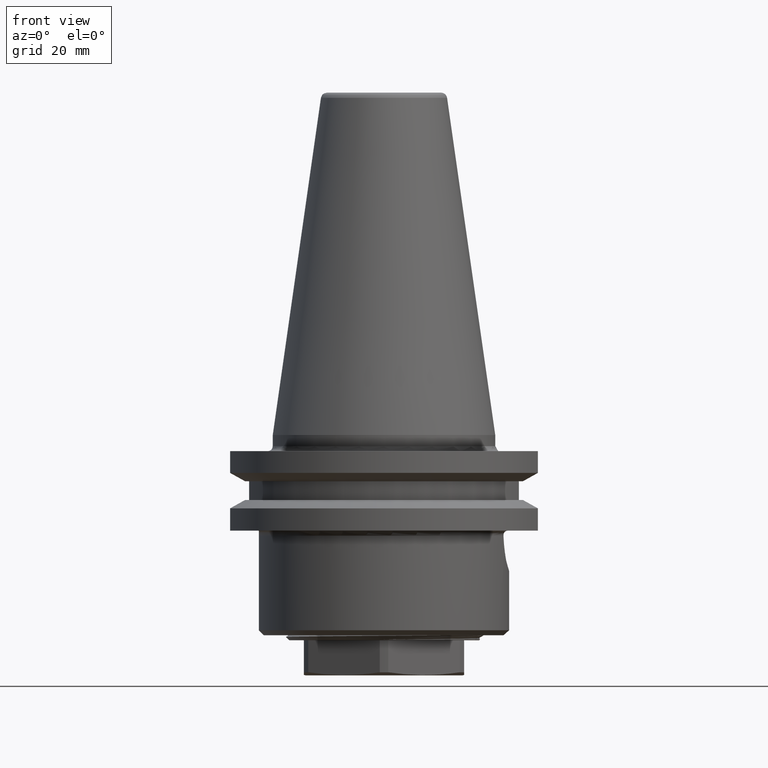
[diagram: clean part render]
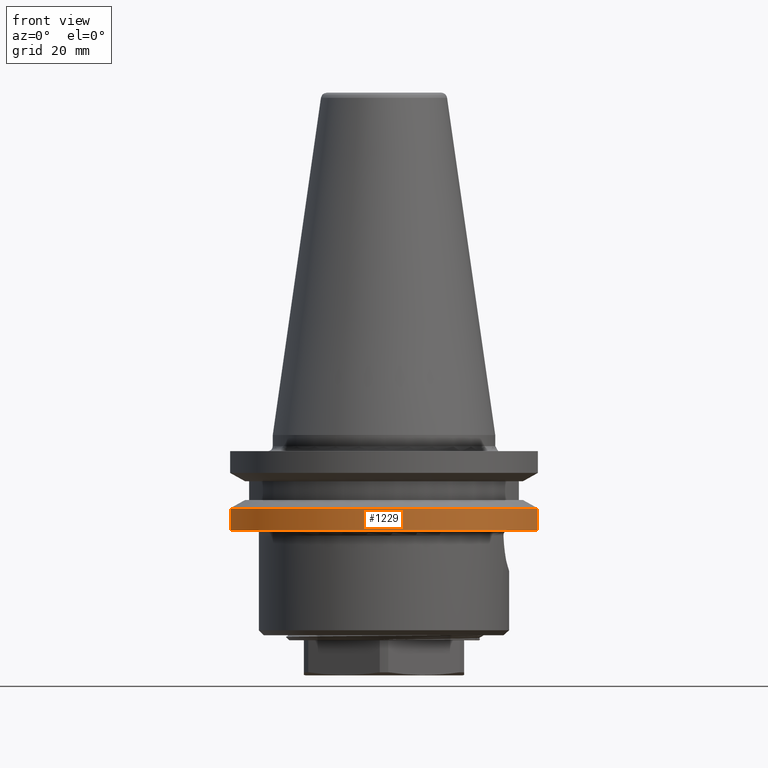
[diagram: same view with one face highlighted and labeled with its STEP entity id]
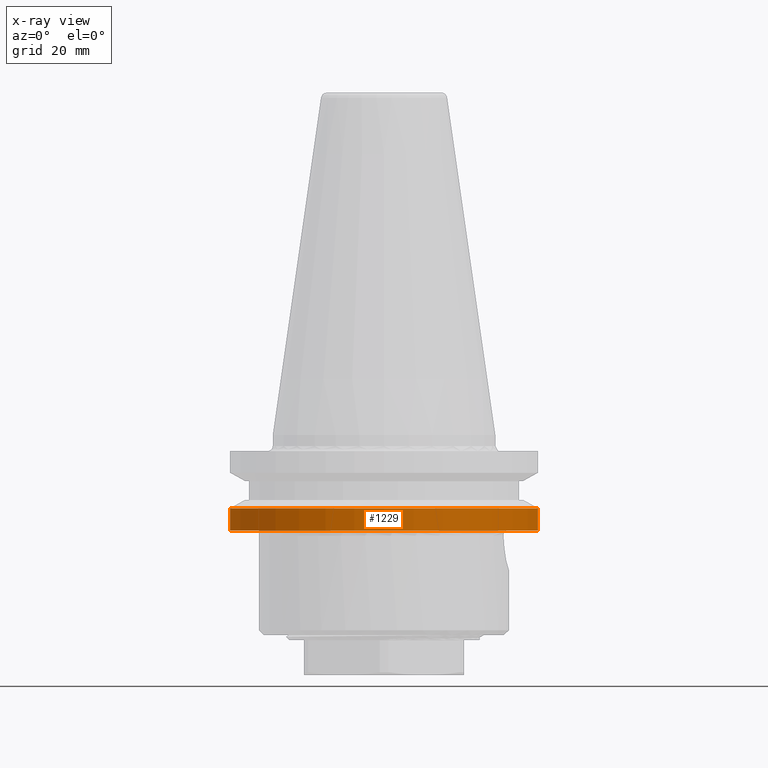
[diagram: x-ray of the same camera — body ghosted, the highlighted face saturated]
A machine part, front view. The second image highlights one B-rep face of the part: STEP entity #1229.
The next image is the same camera in x-ray: the body ghosted, the highlighted face saturated — about 0% of this face is hidden behind the body in this view.
In plain terms, the highlighted cylindrical surface (partial cylindrical patch) has radius 31.775 mm, axis along (0, 0, -1).
Its self-contained STEP definition (entity closure, byte-faithful):
#40=CYLINDRICAL_SURFACE('',#1346,31.775);
#84=LINE('',#2343,#164);
#85=LINE('',#2344,#165);
#164=VECTOR('',#1579,1000.);
#165=VECTOR('',#1580,1000.);
#410=ORIENTED_EDGE('',*,*,#715,.F.);
#411=ORIENTED_EDGE('',*,*,#716,.T.);
#412=ORIENTED_EDGE('',*,*,#712,.T.);
#413=ORIENTED_EDGE('',*,*,#717,.T.);
#712=EDGE_CURVE('',#867,#868,#954,.T.);
#715=EDGE_CURVE('',#869,#870,#955,.T.);
#716=EDGE_CURVE('',#869,#867,#84,.F.);
#717=EDGE_CURVE('',#868,#870,#85,.T.);
#867=VERTEX_POINT('',#2329);
#868=VERTEX_POINT('',#2330);
#869=VERTEX_POINT('',#2341);
#870=VERTEX_POINT('',#2342);
#954=CIRCLE('',#1345,31.775);
#955=CIRCLE('',#1347,31.775);
#1019=EDGE_LOOP('',(#410,#411,#412,#413));
#1110=FACE_BOUND('',#1019,.T.);
#1229=ADVANCED_FACE('',(#1110),#40,.T.);
#1345=AXIS2_PLACEMENT_3D('',#2328,#1573,#1574);
#1346=AXIS2_PLACEMENT_3D('',#2339,#1575,#1576);
#1347=AXIS2_PLACEMENT_3D('',#2340,#1577,#1578);
#1573=DIRECTION('',(0.,0.,-1.));
#1574=DIRECTION('',(-1.,0.,0.));
#1575=DIRECTION('',(0.,0.,-1.));
#1576=DIRECTION('',(-1.,0.,0.));
#1577=DIRECTION('',(0.,0.,-1.));
#1578=DIRECTION('',(-1.,0.,0.));
#1579=DIRECTION('',(0.,0.,-1.));
#1580=DIRECTION('',(0.,0.,-1.));
#2328=CARTESIAN_POINT('',(0.,0.,-14.6362703987865));
#2329=CARTESIAN_POINT('',(30.7383819515602,-8.05000000000001,-14.6362703987865));
#2330=CARTESIAN_POINT('',(-30.7383819515602,-8.05000000000001,-14.6362703987865));
#2339=CARTESIAN_POINT('',(0.,0.,-60.));
#2340=CARTESIAN_POINT('',(0.,0.,-19.1));
#2341=CARTESIAN_POINT('',(30.7383819515602,-8.05000000000001,-19.1));
#2342=CARTESIAN_POINT('',(-30.7383819515602,-8.05000000000001,-19.1));
#2343=CARTESIAN_POINT('',(30.7383819515602,-8.05000000000001,-60.));
#2344=CARTESIAN_POINT('',(-30.7383819515602,-8.05000000000001,-60.));